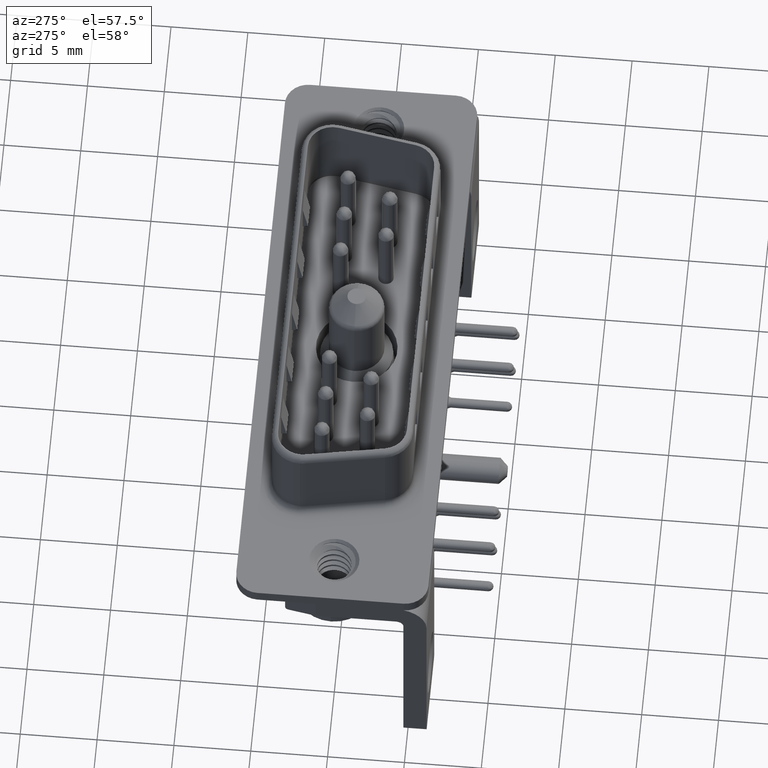
[diagram: clean part render]
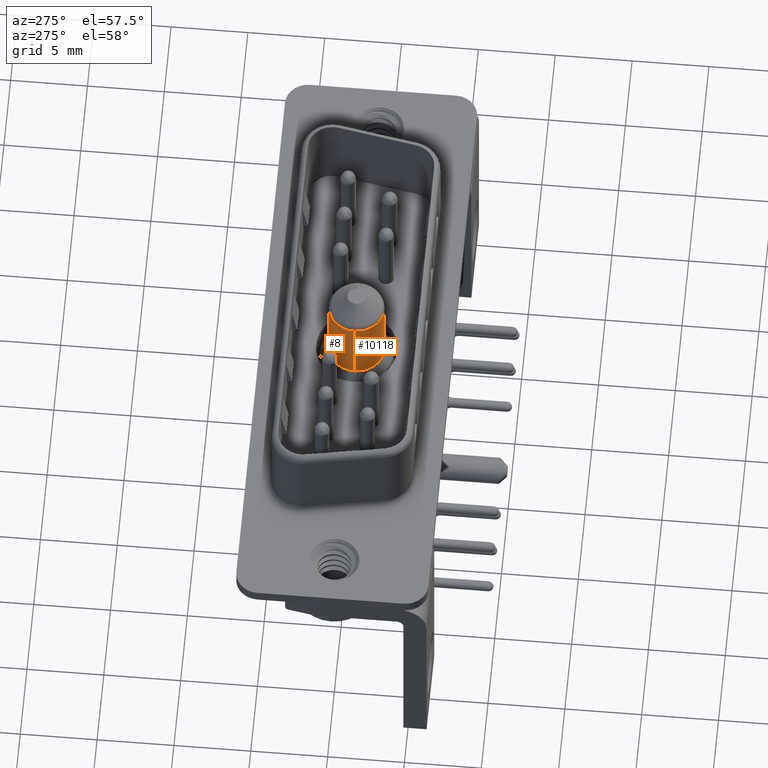
[diagram: same view with one multi-face feature highlighted, each face labeled with its STEP entity id]
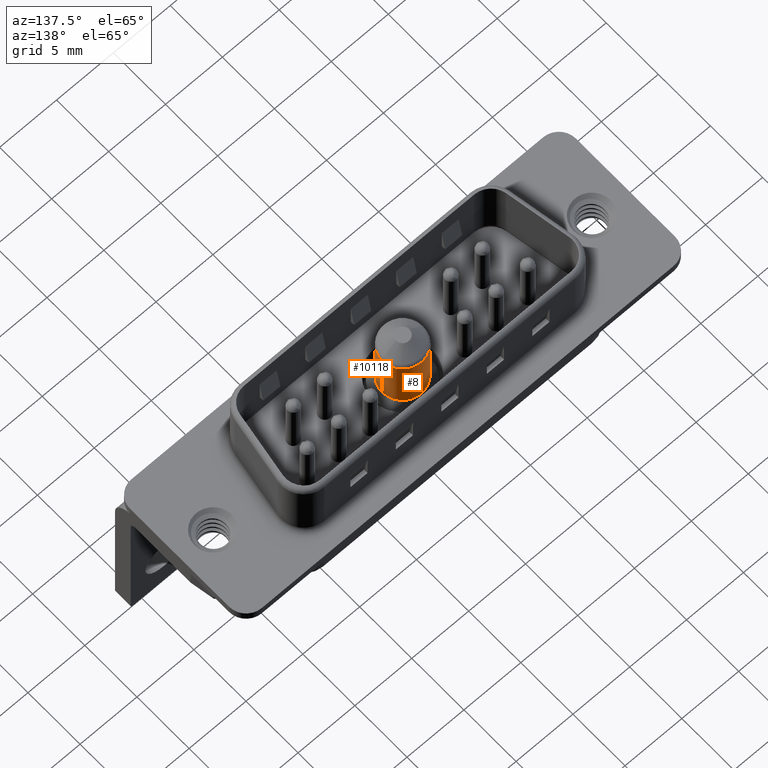
[diagram: same view with one multi-face feature highlighted, each face labeled with its STEP entity id]
A machine part, auxiliary view. The highlighted faces form ONE feature: a constant-radius fillet chain: 2 tangent blend faces with common blend radius 1.8 mm. The faces share edges in the B-rep.
A second angle (auxiliary view) of the same feature is appended — it is thin or edge-on in the first view.
Their STEP definitions:
[1] entity #10118 (Cylinder):
#1315 = DIRECTION ( 'NONE',  ( 1.000000000000000000, 0.0000000000000000000, 0.0000000000000000000 ) ) ;
#2334 = AXIS2_PLACEMENT_3D ( 'NONE', #3300, #22885, #12625 ) ;
#2407 = EDGE_CURVE ( 'NONE', #9472, #22842, #8430, .T. ) ;
#2979 = CARTESIAN_POINT ( 'NONE',  ( -1.800000000000000266, 0.0000000000000000000, 7.100000000000000533 ) ) ;
#3084 = CIRCLE ( 'NONE', #12888, 1.799999999999999600 ) ;
#3300 = CARTESIAN_POINT ( 'NONE',  ( 0.0000000000000000000, 0.0000000000000000000, 4.233549705346610459 ) ) ;
#3442 = CARTESIAN_POINT ( 'NONE',  ( 1.799999999999999600, 0.0000000000000000000, 11.89289321881344108 ) ) ;
#4025 = AXIS2_PLACEMENT_3D ( 'NONE', #10945, #12708, #18124 ) ;
#6303 = DIRECTION ( 'NONE',  ( -0.0000000000000000000, -0.0000000000000000000, 1.000000000000000000 ) ) ;
#7089 = CYLINDRICAL_SURFACE ( 'NONE', #2334, 1.799999999999999822 ) ;
#7202 = VECTOR ( 'NONE', #6303, 1000.000000000000000 ) ;
#7836 = ORIENTED_EDGE ( 'NONE', *, *, #8831, .T. ) ;
#8430 = LINE ( 'NONE', #12089, #7202 ) ;
#8831 = EDGE_CURVE ( 'NONE', #9472, #12788, #21367, .T. ) ;
#8835 = EDGE_LOOP ( 'NONE', ( #9255, #7836, #18318, #16684 ) ) ;
#8982 = CARTESIAN_POINT ( 'NONE',  ( 1.800000000000000266, 2.556450193220099768E-16, 7.100000000000000533 ) ) ;
#9255 = ORIENTED_EDGE ( 'NONE', *, *, #2407, .F. ) ;
#9472 = VERTEX_POINT ( 'NONE', #2979 ) ;
#9477 = EDGE_CURVE ( 'NONE', #22842, #10977, #3084, .T. ) ;
#9841 = CARTESIAN_POINT ( 'NONE',  ( 0.0000000000000000000, 0.0000000000000000000, 11.89289321881344108 ) ) ;
#10118 = ADVANCED_FACE ( 'NONE', ( #19681 ), #7089, .T. ) ;
#10945 = CARTESIAN_POINT ( 'NONE',  ( 0.0000000000000000000, 0.0000000000000000000, 7.100000000000000533 ) ) ;
#10963 = CARTESIAN_POINT ( 'NONE',  ( 1.799999999999999822, 0.0000000000000000000, 4.233549705346610459 ) ) ;
#10977 = VERTEX_POINT ( 'NONE', #3442 ) ;
#12089 = CARTESIAN_POINT ( 'NONE',  ( -1.799999999999999822, 2.204364238465235576E-16, 4.233549705346610459 ) ) ;
#12625 = DIRECTION ( 'NONE',  ( 1.000000000000000000, 0.0000000000000000000, 0.0000000000000000000 ) ) ;
#12708 = DIRECTION ( 'NONE',  ( -0.0000000000000000000, -0.0000000000000000000, 1.000000000000000000 ) ) ;
#12788 = VERTEX_POINT ( 'NONE', #8982 ) ;
#12888 = AXIS2_PLACEMENT_3D ( 'NONE', #9841, #21026, #1315 ) ;
#16684 = ORIENTED_EDGE ( 'NONE', *, *, #9477, .F. ) ;
#18124 = DIRECTION ( 'NONE',  ( 1.000000000000000000, 0.0000000000000000000, 0.0000000000000000000 ) ) ;
#18318 = ORIENTED_EDGE ( 'NONE', *, *, #19618, .T. ) ;
#18358 = VECTOR ( 'NONE', #21341, 1000.000000000000000 ) ;
#19535 = CARTESIAN_POINT ( 'NONE',  ( -1.799999999999999600, 2.204364238465235576E-16, 11.89289321881344108 ) ) ;
#19618 = EDGE_CURVE ( 'NONE', #12788, #10977, #21461, .T. ) ;
#19681 = FACE_OUTER_BOUND ( 'NONE', #8835, .T. ) ;
#21026 = DIRECTION ( 'NONE',  ( -0.0000000000000000000, -0.0000000000000000000, 1.000000000000000000 ) ) ;
#21341 = DIRECTION ( 'NONE',  ( -0.0000000000000000000, -0.0000000000000000000, 1.000000000000000000 ) ) ;
#21367 = CIRCLE ( 'NONE', #4025, 1.800000000000000044 ) ;
#21461 = LINE ( 'NONE', #10963, #18358 ) ;
#22842 = VERTEX_POINT ( 'NONE', #19535 ) ;
#22885 = DIRECTION ( 'NONE',  ( -0.0000000000000000000, -0.0000000000000000000, 1.000000000000000000 ) ) ;
[2] entity #8 (Cylinder):
#8 = ADVANCED_FACE ( 'NONE', ( #22286 ), #20379, .T. ) ;
#86 = AXIS2_PLACEMENT_3D ( 'NONE', #21862, #11386, #7488 ) ;
#2224 = DIRECTION ( 'NONE',  ( -0.0000000000000000000, -0.0000000000000000000, 1.000000000000000000 ) ) ;
#2331 = CARTESIAN_POINT ( 'NONE',  ( 0.0000000000000000000, 0.0000000000000000000, 4.233549705346610459 ) ) ;
#2407 = EDGE_CURVE ( 'NONE', #9472, #22842, #8430, .T. ) ;
#2979 = CARTESIAN_POINT ( 'NONE',  ( -1.800000000000000266, 0.0000000000000000000, 7.100000000000000533 ) ) ;
#3442 = CARTESIAN_POINT ( 'NONE',  ( 1.799999999999999600, 0.0000000000000000000, 11.89289321881344108 ) ) ;
#5559 = ORIENTED_EDGE ( 'NONE', *, *, #20923, .T. ) ;
#5579 = DIRECTION ( 'NONE',  ( 1.000000000000000000, 0.0000000000000000000, 0.0000000000000000000 ) ) ;
#6303 = DIRECTION ( 'NONE',  ( -0.0000000000000000000, -0.0000000000000000000, 1.000000000000000000 ) ) ;
#7202 = VECTOR ( 'NONE', #6303, 1000.000000000000000 ) ;
#7488 = DIRECTION ( 'NONE',  ( 1.000000000000000000, 0.0000000000000000000, 0.0000000000000000000 ) ) ;
#8430 = LINE ( 'NONE', #12089, #7202 ) ;
#8982 = CARTESIAN_POINT ( 'NONE',  ( 1.800000000000000266, 2.556450193220099768E-16, 7.100000000000000533 ) ) ;
#9182 = EDGE_CURVE ( 'NONE', #10977, #22842, #21536, .T. ) ;
#9472 = VERTEX_POINT ( 'NONE', #2979 ) ;
#10963 = CARTESIAN_POINT ( 'NONE',  ( 1.799999999999999822, 0.0000000000000000000, 4.233549705346610459 ) ) ;
#10977 = VERTEX_POINT ( 'NONE', #3442 ) ;
#11386 = DIRECTION ( 'NONE',  ( -0.0000000000000000000, -0.0000000000000000000, 1.000000000000000000 ) ) ;
#12001 = ORIENTED_EDGE ( 'NONE', *, *, #2407, .T. ) ;
#12089 = CARTESIAN_POINT ( 'NONE',  ( -1.799999999999999822, 2.204364238465235576E-16, 4.233549705346610459 ) ) ;
#12788 = VERTEX_POINT ( 'NONE', #8982 ) ;
#13573 = DIRECTION ( 'NONE',  ( 1.000000000000000000, 0.0000000000000000000, 0.0000000000000000000 ) ) ;
#14107 = AXIS2_PLACEMENT_3D ( 'NONE', #2331, #2224, #13573 ) ;
#14395 = ORIENTED_EDGE ( 'NONE', *, *, #19618, .F. ) ;
#15884 = DIRECTION ( 'NONE',  ( -0.0000000000000000000, -0.0000000000000000000, 1.000000000000000000 ) ) ;
#18358 = VECTOR ( 'NONE', #21341, 1000.000000000000000 ) ;
#18550 = CIRCLE ( 'NONE', #86, 1.800000000000000044 ) ;
#18732 = EDGE_LOOP ( 'NONE', ( #5559, #12001, #23315, #14395 ) ) ;
#19535 = CARTESIAN_POINT ( 'NONE',  ( -1.799999999999999600, 2.204364238465235576E-16, 11.89289321881344108 ) ) ;
#19618 = EDGE_CURVE ( 'NONE', #12788, #10977, #21461, .T. ) ;
#19623 = CARTESIAN_POINT ( 'NONE',  ( 0.0000000000000000000, 0.0000000000000000000, 11.89289321881344108 ) ) ;
#20001 = AXIS2_PLACEMENT_3D ( 'NONE', #19623, #15884, #5579 ) ;
#20379 = CYLINDRICAL_SURFACE ( 'NONE', #14107, 1.799999999999999822 ) ;
#20923 = EDGE_CURVE ( 'NONE', #12788, #9472, #18550, .T. ) ;
#21341 = DIRECTION ( 'NONE',  ( -0.0000000000000000000, -0.0000000000000000000, 1.000000000000000000 ) ) ;
#21461 = LINE ( 'NONE', #10963, #18358 ) ;
#21536 = CIRCLE ( 'NONE', #20001, 1.799999999999999600 ) ;
#21862 = CARTESIAN_POINT ( 'NONE',  ( 0.0000000000000000000, 0.0000000000000000000, 7.100000000000000533 ) ) ;
#22286 = FACE_OUTER_BOUND ( 'NONE', #18732, .T. ) ;
#22842 = VERTEX_POINT ( 'NONE', #19535 ) ;
#23315 = ORIENTED_EDGE ( 'NONE', *, *, #9182, .F. ) ;